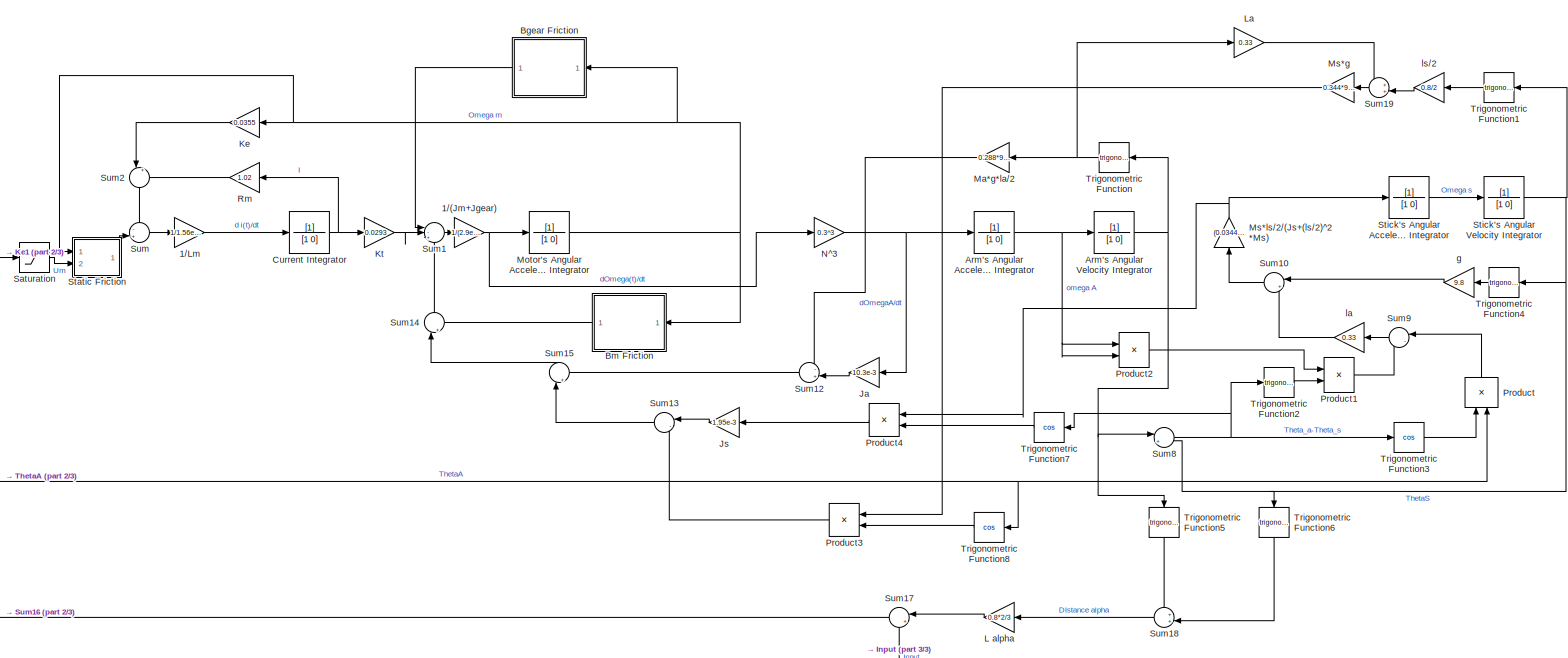
[diagram: root canvas - part 1/3, most of the canvas]
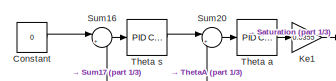
[diagram: root canvas - part 2/3, middle left region]
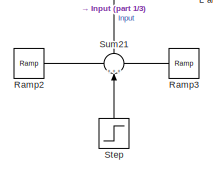
[diagram: root canvas - part 3/3, bottom center region]
MODEL slx_998914947470
KIND model
CONFIG AbsTol = auto
CONFIG EnableMultiTasking = off
CONFIG FixedStep = auto
CONFIG MaxStep = auto
CONFIG MinStep = auto
CONFIG RelTol = 1e-3
CONFIG SampleTimeConstraint = Unconstrained
CONFIG Solver = VariableStepAuto
CONFIG SolverName = VariableStepAuto
CONFIG StartTime = 0.0
CONFIG StopTime = 5
BLOCK [Gain] 1//(Jm+Jgear)
  Gain = 1/(2.9e-5+1.53e-4)
  OutDataTypeStr = Inherit: Inherit via internal rule
  ParamDataTypeStr = Inherit: Inherit via internal rule
  SaturateOnIntegerOverflow = off
BLOCK [Gain] 1//Lm
  Gain = 1/1.56e-4
  OutDataTypeStr = Inherit: Inherit via internal rule
  ParamDataTypeStr = Inherit: Inherit via internal rule
  SaturateOnIntegerOverflow = off
BLOCK [TransferFcn] Arm's Angular Acceleration Integrator
  Denominator = [1 0]
BLOCK [TransferFcn] Arm's Angular Velocity Integrator
  Denominator = [1 0]
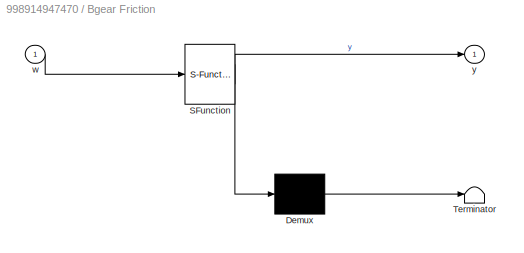
BLOCK [SubSystem] Bgear Friction
  ErrorFcn = Stateflow.Translate.translate
  PermitHierarchicalResolution = ExplicitOnly
  Ports = [1, 1]
  RequestExecContextInheritance = off
  SFBlockType = MATLAB Function
  TreatAsAtomicUnit = on
  Variant = off
BLOCK [Demux] Bgear Friction/ Demux 
  Outputs = 1
  Ports = [1, 1]
BLOCK [S-Function] Bgear Friction/ SFunction 
  EnableBusSupport = on
  FunctionName = sf_sfun
  PortCounts = [1 2]
  Ports = [1, 2]
  SFcnIsStateOwnerBlock = off
  SFunctionDeploymentMode = off
  Tag = Stateflow S-Function UnlinearSimulation 3
BLOCK [Terminator] Bgear Friction/ Terminator 
BLOCK [Inport] Bgear Friction/w
  IconDisplay = Port number
BLOCK [Outport] Bgear Friction/y
  IconDisplay = Port number
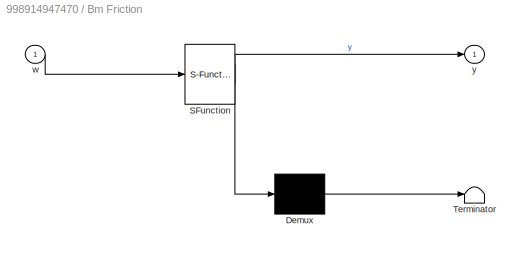
BLOCK [SubSystem] Bm Friction
  ErrorFcn = Stateflow.Translate.translate
  PermitHierarchicalResolution = ExplicitOnly
  Ports = [1, 1]
  RequestExecContextInheritance = off
  SFBlockType = MATLAB Function
  TreatAsAtomicUnit = on
  Variant = off
BLOCK [Demux] Bm Friction/ Demux 
  Outputs = 1
  Ports = [1, 1]
BLOCK [S-Function] Bm Friction/ SFunction 
  EnableBusSupport = on
  FunctionName = sf_sfun
  PortCounts = [1 2]
  Ports = [1, 2]
  SFcnIsStateOwnerBlock = off
  SFunctionDeploymentMode = off
  Tag = Stateflow S-Function UnlinearSimulation 2
BLOCK [Terminator] Bm Friction/ Terminator 
BLOCK [Inport] Bm Friction/w
  IconDisplay = Port number
BLOCK [Outport] Bm Friction/y
  IconDisplay = Port number
BLOCK [Constant] Constant
  Value = 0
BLOCK [TransferFcn] Current Integrator
  Denominator = [1 0]
BLOCK [Gain] Ja
  Gain = 10.3e-3
  OutDataTypeStr = Inherit: Inherit via internal rule
  ParamDataTypeStr = Inherit: Inherit via internal rule
  SaturateOnIntegerOverflow = off
BLOCK [Gain] Js 
  Gain = 1.95e-3
  OutDataTypeStr = Inherit: Inherit via internal rule
  ParamDataTypeStr = Inherit: Inherit via internal rule
  SaturateOnIntegerOverflow = off
BLOCK [Gain] Ke
  Gain = 0.0355
  OutDataTypeStr = Inherit: Inherit via internal rule
  ParamDataTypeStr = Inherit: Inherit via internal rule
  SaturateOnIntegerOverflow = off
BLOCK [Gain] Ke1
  Gain = 0.0355
  OutDataTypeStr = Inherit: Inherit via internal rule
  ParamDataTypeStr = Inherit: Inherit via internal rule
  SaturateOnIntegerOverflow = off
BLOCK [Gain] Kt
  Gain = 0.0293
  OutDataTypeStr = Inherit: Inherit via internal rule
  ParamDataTypeStr = Inherit: Inherit via internal rule
  SaturateOnIntegerOverflow = off
BLOCK [Gain] L alpha
  Gain = 0.8*2/3
  OutDataTypeStr = Inherit: Inherit via internal rule
  ParamDataTypeStr = Inherit: Inherit via internal rule
  SaturateOnIntegerOverflow = off
BLOCK [Gain] La
  Gain = 0.33
  OutDataTypeStr = Inherit: Inherit via internal rule
  ParamDataTypeStr = Inherit: Inherit via internal rule
  SaturateOnIntegerOverflow = off
BLOCK [Gain] Ma*g*la//2
  Gain = 0.288*9.8*0.33/2
  OutDataTypeStr = Inherit: Inherit via internal rule
  ParamDataTypeStr = Inherit: Inherit via internal rule
  SaturateOnIntegerOverflow = off
BLOCK [TransferFcn] Motor's Angular Acceleration Integrator
  Denominator = [1 0]
BLOCK [Gain] Ms*g
  Gain = 0.344*9.8
  OutDataTypeStr = Inherit: Inherit via internal rule
  ParamDataTypeStr = Inherit: Inherit via internal rule
  SaturateOnIntegerOverflow = off
BLOCK [Gain] Ms*ls//2//(Js+(ls//2)^2*Ms)
  Gain = (0.0344*0.8/2)/(1.95e-3+(0.4)^2*0.344)
  OutDataTypeStr = Inherit: Inherit via internal rule
  ParamDataTypeStr = Inherit: Inherit via internal rule
  SaturateOnIntegerOverflow = off
BLOCK [Gain] N^3
  Gain = 0.3^3
  OutDataTypeStr = Inherit: Inherit via internal rule
  ParamDataTypeStr = Inherit: Inherit via internal rule
  SaturateOnIntegerOverflow = off
BLOCK [Product] Product
  InputSameDT = off
  OutDataTypeStr = Inherit: Inherit via internal rule
  Ports = [2, 1]
  RndMeth = Floor
  SaturateOnIntegerOverflow = off
BLOCK [Product] Product1
  InputSameDT = off
  OutDataTypeStr = Inherit: Inherit via internal rule
  Ports = [2, 1]
  RndMeth = Floor
  SaturateOnIntegerOverflow = off
BLOCK [Product] Product2
  InputSameDT = off
  OutDataTypeStr = Inherit: Inherit via internal rule
  Ports = [2, 1]
  RndMeth = Floor
  SaturateOnIntegerOverflow = off
BLOCK [Product] Product3
  InputSameDT = off
  OutDataTypeStr = Inherit: Inherit via internal rule
  Ports = [2, 1]
  RndMeth = Floor
  SaturateOnIntegerOverflow = off
BLOCK [Product] Product4
  InputSameDT = off
  OutDataTypeStr = Inherit: Inherit via internal rule
  Ports = [2, 1]
  RndMeth = Floor
  SaturateOnIntegerOverflow = off
BLOCK [Reference] Ramp2  REF=simulink/Sources/Ramp
  Ports = [0, 1]
  SourceBlock = simulink/Sources/Ramp
  SourceProductBaseCode = SL
  SourceProductName = Simulink
  SourceType = Ramp
BLOCK [Reference] Ramp3  REF=simulink/Sources/Ramp
  Ports = [0, 1]
  SourceBlock = simulink/Sources/Ramp
  SourceProductBaseCode = SL
  SourceProductName = Simulink
  SourceType = Ramp
BLOCK [Gain] Rm
  Gain = 1.02
  OutDataTypeStr = Inherit: Inherit via internal rule
  ParamDataTypeStr = Inherit: Inherit via internal rule
  SaturateOnIntegerOverflow = off
BLOCK [Saturate] Saturation
  InputPortMap = u0
  LowerLimit = -14
  Ports = [1, 1]
  UpperLimit = 14
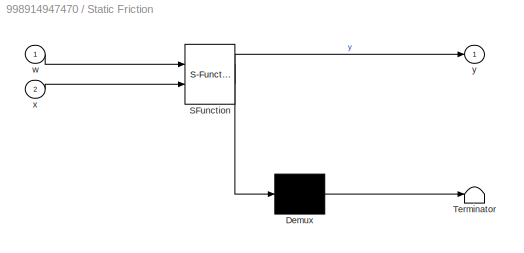
BLOCK [SubSystem] Static Friction
  ErrorFcn = Stateflow.Translate.translate
  PermitHierarchicalResolution = ExplicitOnly
  Ports = [2, 1]
  RequestExecContextInheritance = off
  SFBlockType = MATLAB Function
  TreatAsAtomicUnit = on
  Variant = off
BLOCK [Demux] Static Friction/ Demux 
  Outputs = 1
  Ports = [1, 1]
BLOCK [S-Function] Static Friction/ SFunction 
  EnableBusSupport = on
  FunctionName = sf_sfun
  PortCounts = [2 2]
  Ports = [2, 2]
  SFcnIsStateOwnerBlock = off
  SFunctionDeploymentMode = off
  Tag = Stateflow S-Function UnlinearSimulation 1
BLOCK [Terminator] Static Friction/ Terminator 
BLOCK [Inport] Static Friction/w
  IconDisplay = Port number
BLOCK [Inport] Static Friction/x
  IconDisplay = Port number
  Port = 2
BLOCK [Outport] Static Friction/y
  IconDisplay = Port number
BLOCK [Step] Step
  After = -2/3*sin(pi/180)*0.1*0.8
  SampleTime = 0
  Time = 0.1
BLOCK [TransferFcn] Stick's Angular Acceleration Integrator
  Denominator = [1 0]
BLOCK [TransferFcn] Stick's Angular Velocity Integrator
  Denominator = [1 0]
BLOCK [Sum] Sum
  IconShape = round
  InputSameDT = off
  Inputs = -+
  OutDataTypeStr = Inherit: Inherit via internal rule
  Ports = [2, 1]
  SaturateOnIntegerOverflow = off
BLOCK [Sum] Sum1
  IconShape = round
  InputSameDT = off
  Inputs = |-++
  OutDataTypeStr = Inherit: Inherit via internal rule
  Ports = [3, 1]
  SaturateOnIntegerOverflow = off
BLOCK [Sum] Sum10
  IconShape = round
  InputSameDT = off
  Inputs = |++
  OutDataTypeStr = Inherit: Inherit via internal rule
  Ports = [2, 1]
  SaturateOnIntegerOverflow = off
BLOCK [Sum] Sum12
  IconShape = round
  InputSameDT = off
  Inputs = -+|
  OutDataTypeStr = Inherit: Inherit via internal rule
  Ports = [2, 1]
  SaturateOnIntegerOverflow = off
BLOCK [Sum] Sum13
  IconShape = round
  InputSameDT = off
  Inputs = |--
  OutDataTypeStr = Inherit: Inherit via internal rule
  Ports = [2, 1]
  SaturateOnIntegerOverflow = off
BLOCK [Sum] Sum14
  IconShape = round
  InputSameDT = off
  Inputs = |+-
  OutDataTypeStr = Inherit: Inherit via internal rule
  Ports = [2, 1]
  SaturateOnIntegerOverflow = off
BLOCK [Sum] Sum15
  IconShape = round
  InputSameDT = off
  Inputs = |++
  OutDataTypeStr = Inherit: Inherit via internal rule
  Ports = [2, 1]
  SaturateOnIntegerOverflow = off
BLOCK [Sum] Sum16
  IconShape = round
  InputSameDT = off
  Inputs = |+-
  OutDataTypeStr = Inherit: Inherit via internal rule
  Ports = [2, 1]
  SaturateOnIntegerOverflow = off
BLOCK [Sum] Sum17
  IconShape = round
  InputSameDT = off
  Inputs = |++
  OutDataTypeStr = Inherit: Inherit via internal rule
  Ports = [2, 1]
  SaturateOnIntegerOverflow = off
BLOCK [Sum] Sum18
  IconShape = round
  InputSameDT = off
  Inputs = ++|
  OutDataTypeStr = Inherit: Inherit via internal rule
  Ports = [2, 1]
  SaturateOnIntegerOverflow = off
BLOCK [Sum] Sum19
  IconShape = round
  InputSameDT = off
  Inputs = ++|
  OutDataTypeStr = Inherit: Inherit via internal rule
  Ports = [2, 1]
  SaturateOnIntegerOverflow = off
BLOCK [Sum] Sum2
  IconShape = round
  InputSameDT = off
  Inputs = |++
  OutDataTypeStr = Inherit: Inherit via internal rule
  Ports = [2, 1]
  SaturateOnIntegerOverflow = off
BLOCK [Sum] Sum20
  IconShape = round
  InputSameDT = off
  Inputs = |+-
  OutDataTypeStr = Inherit: Inherit via internal rule
  Ports = [2, 1]
  SaturateOnIntegerOverflow = off
BLOCK [Sum] Sum21
  IconShape = round
  InputSameDT = off
  Inputs = +++
  OutDataTypeStr = Inherit: Inherit via internal rule
  Ports = [3, 1]
  SaturateOnIntegerOverflow = off
BLOCK [Sum] Sum8
  IconShape = round
  InputSameDT = off
  Inputs = |+-
  OutDataTypeStr = Inherit: Inherit via internal rule
  Ports = [2, 1]
  SaturateOnIntegerOverflow = off
BLOCK [Sum] Sum9
  IconShape = round
  InputSameDT = off
  Inputs = |-+
  OutDataTypeStr = Inherit: Inherit via internal rule
  Ports = [2, 1]
  SaturateOnIntegerOverflow = off
BLOCK [Reference] Theta a  REF=simulink/Continuous/PID Controller
  Ports = [1, 1]
  SourceBlock = simulink/Continuous/PID Controller
  SourceProductBaseCode = SL
  SourceProductName = Simulink
  SourceType = PID 1dof
BLOCK [Reference] Theta s  REF=simulink/Continuous/PID Controller
  Ports = [1, 1]
  SourceBlock = simulink/Continuous/PID Controller
  SourceProductBaseCode = SL
  SourceProductName = Simulink
  SourceType = PID 1dof
BLOCK [Trigonometry] Trigonometric Function
  Ports = [1, 1]
BLOCK [Trigonometry] Trigonometric Function1
  Ports = [1, 1]
BLOCK [Trigonometry] Trigonometric Function2
  Ports = [1, 1]
BLOCK [Trigonometry] Trigonometric Function3
  Operator = cos
  Ports = [1, 1]
BLOCK [Trigonometry] Trigonometric Function4
  Ports = [1, 1]
BLOCK [Trigonometry] Trigonometric Function5
  Ports = [1, 1]
BLOCK [Trigonometry] Trigonometric Function6
  Ports = [1, 1]
BLOCK [Trigonometry] Trigonometric Function7
  Operator = cos
  Ports = [1, 1]
BLOCK [Trigonometry] Trigonometric Function8
  Operator = cos
  Ports = [1, 1]
BLOCK [Gain] g
  Gain = 9.8
  OutDataTypeStr = Inherit: Inherit via internal rule
  ParamDataTypeStr = Inherit: Inherit via internal rule
  SaturateOnIntegerOverflow = off
BLOCK [Gain] la
  Gain = 0.33
  OutDataTypeStr = Inherit: Inherit via internal rule
  ParamDataTypeStr = Inherit: Inherit via internal rule
  SaturateOnIntegerOverflow = off
BLOCK [Gain] ls//2
  Gain = 0.8/2
  OutDataTypeStr = Inherit: Inherit via internal rule
  ParamDataTypeStr = Inherit: Inherit via internal rule
  SaturateOnIntegerOverflow = off
NET 1//(Jm+Jgear):1 -> Motor's Angular Acceleration Integrator:1, N^3:1
LINE 1//Lm:1 -> Current Integrator:1
NET Arm's Angular Acceleration Integrator:1 -> Arm's Angular Velocity Integrator:1, Product2:1, Product2:2
NET Arm's Angular Velocity Integrator:1 -> Product:2, Sum20:2, Sum8:1, Trigonometric Function5:1, Trigonometric Function8:1, Trigonometric Function:1
LINE Bgear Friction:1 -> Sum1:1
LINE Bm Friction:1 -> Sum14:2
LINE Constant:1 -> Sum16:1
NET Current Integrator:1 -> Kt:1, Rm:1
LINE Ja:1 -> Sum12:2
LINE Js :1 -> Sum13:1
LINE Ke1:1 -> Saturation:1
LINE Ke:1 -> Sum2:1
LINE Kt:1 -> Sum1:2
LINE L alpha:1 -> Sum17:1
LINE La:1 -> Sum19:1
LINE Ma*g*la//2:1 -> Sum12:1
NET Motor's Angular Acceleration Integrator:1 -> Bgear Friction:1, Bm Friction:1, Ke:1, Static Friction:1
LINE Ms*g:1 -> Product3:1
NET Ms*ls//2//(Js+(ls//2)^2*Ms):1 -> Product4:1, Stick's Angular Acceleration Integrator:1
NET N^3:1 -> Arm's Angular Acceleration Integrator:1, Ja:1
LINE Product1:1 -> Sum9:2
LINE Product2:1 -> Product1:1
LINE Product3:1 -> Sum13:2
LINE Product4:1 -> Js :1
LINE Product:1 -> Sum9:1
LINE Ramp2:1 -> Sum21:1
LINE Ramp3:1 -> Sum21:3
LINE Rm:1 -> Sum2:2
LINE Saturation:1 -> Static Friction:2
LINE Static Friction:1 -> Sum:2
LINE Step:1 -> Sum21:2
LINE Stick's Angular Acceleration Integrator:1 -> Stick's Angular Velocity Integrator:1
NET Stick's Angular Velocity Integrator:1 -> Sum8:2, Trigonometric Function1:1, Trigonometric Function4:1, Trigonometric Function6:1
LINE Sum10:1 -> Ms*ls//2//(Js+(ls//2)^2*Ms):1
LINE Sum12:1 -> Sum15:2
LINE Sum13:1 -> Sum15:1
LINE Sum14:1 -> Sum1:3
LINE Sum15:1 -> Sum14:1
LINE Sum16:1 -> Theta s:1
LINE Sum17:1 -> Sum16:2
LINE Sum18:1 -> L alpha:1
LINE Sum19:1 -> Ms*g:1
LINE Sum1:1 -> 1//(Jm+Jgear):1
LINE Sum20:1 -> Theta a:1
LINE Sum21:1 -> Sum17:2
LINE Sum2:1 -> Sum:1
NET Sum8:1 -> Trigonometric Function2:1, Trigonometric Function3:1, Trigonometric Function7:1
LINE Sum9:1 -> la:1
LINE Sum:1 -> 1//Lm:1
LINE Theta a:1 -> Ke1:1
LINE Theta s:1 -> Sum20:1
LINE Trigonometric Function1:1 -> ls//2:1
LINE Trigonometric Function2:1 -> Product1:2
LINE Trigonometric Function3:1 -> Product:1
LINE Trigonometric Function4:1 -> g:1
LINE Trigonometric Function5:1 -> Sum18:1
LINE Trigonometric Function6:1 -> Sum18:2
LINE Trigonometric Function7:1 -> Product4:2
LINE Trigonometric Function8:1 -> Product3:2
NET Trigonometric Function:1 -> La:1, Ma*g*la//2:1
LINE g:1 -> Sum10:1
LINE la:1 -> Sum10:2
LINE ls//2:1 -> Sum19:2
note: NET lines group one-source signal fan-out (src -> all destinations, sorted); 1:1 wires keep LINE
CHART Static Friction states=1 transitions=1
  STATE_LABEL 'eML_blk_kernel()'
  STATE_LABEL 'SCRIPT:\nfunction y = fcn(w,x)\n\nUmini=1.377;\n\nif w~=0\n    y=x;\nelseif abs(x)>Umini\n    y=x;\nelse\n    y=0;\nend  \n'
CHART Bm Friction states=1 transitions=1
  STATE_LABEL 'eML_blk_kernel()'
  STATE_LABEL 'SCRIPT:\nfunction y = fcn(w)\n\nBm=1.59e-4;\n\nif w~=0\n    y=Bm*w;\nelse\n    y=0;\nend  \n'
CHART Bgear Friction states=1 transitions=1
  STATE_LABEL 'eML_blk_kernel()'
  STATE_LABEL 'SCRIPT:\nfunction y = fcn(w)\n\nBgear=1.11e-3;\n\nif w~=0\n    y=Bgear*w;\nelse\n    y=0;\nend  \n'
